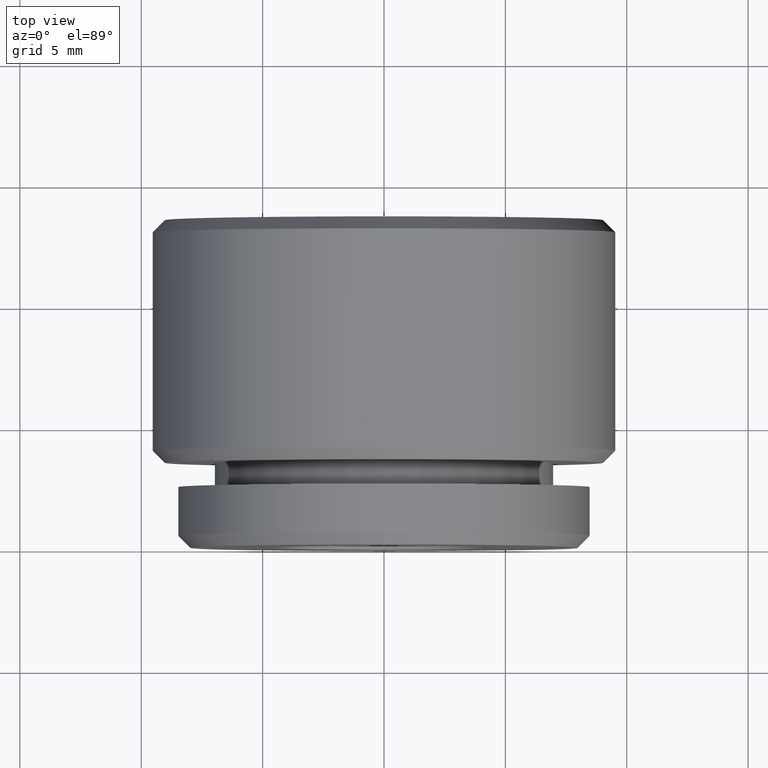
[diagram: clean part render]
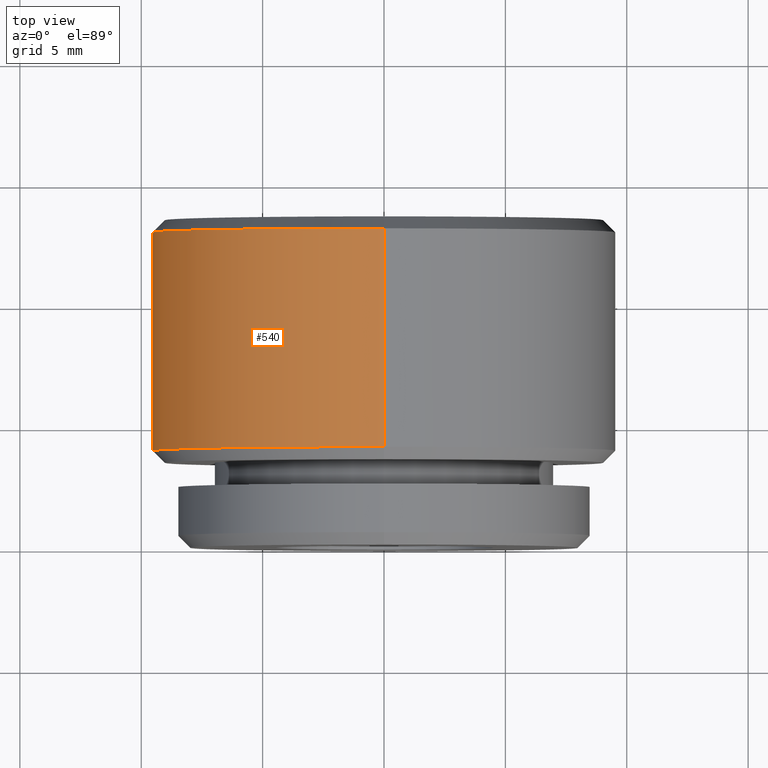
[diagram: same view with one face highlighted and labeled with its STEP entity id]
A machine part, top view. The second image highlights one B-rep face of the part: STEP entity #540.
In plain terms, the highlighted cylindrical surface (partial cylindrical patch) has radius 9.525 mm, axis along (-0, -1, -0).
Its self-contained STEP definition (entity closure, byte-faithful):
#1 = DIRECTION ( 'NONE',  ( 0.0000000000000000000, 0.0000000000000000000, -1.000000000000000000 ) ) ;
#6 = CARTESIAN_POINT ( 'NONE',  ( 0.0000000000000000000, 0.0000000000000000000, 0.0000000000000000000 ) ) ;
#58 = DIRECTION ( 'NONE',  ( 0.0000000000000000000, 1.000000000000000000, 0.0000000000000000000 ) ) ;
#82 = VECTOR ( 'NONE', #841, 1000.000000000000000 ) ;
#121 = EDGE_LOOP ( 'NONE', ( #242, #351, #233, #348 ) ) ;
#135 = VECTOR ( 'NONE', #520, 1000.000000000000000 ) ;
#147 = AXIS2_PLACEMENT_3D ( 'NONE', #667, #730, #278 ) ;
#186 = CARTESIAN_POINT ( 'NONE',  ( 0.0000000000000000000, 0.0000000000000000000, -9.525000000000000400 ) ) ;
#202 = EDGE_CURVE ( 'NONE', #299, #236, #251, .T. ) ;
#233 = ORIENTED_EDGE ( 'NONE', *, *, #370, .T. ) ;
#236 = VERTEX_POINT ( 'NONE', #804 ) ;
#242 = ORIENTED_EDGE ( 'NONE', *, *, #202, .F. ) ;
#251 = LINE ( 'NONE', #400, #135 ) ;
#278 = DIRECTION ( 'NONE',  ( 0.0000000000000000000, 0.0000000000000000000, 1.000000000000000000 ) ) ;
#287 = CIRCLE ( 'NONE', #147, 9.525000000000000400 ) ;
#299 = VERTEX_POINT ( 'NONE', #569 ) ;
#348 = ORIENTED_EDGE ( 'NONE', *, *, #395, .T. ) ;
#351 = ORIENTED_EDGE ( 'NONE', *, *, #658, .T. ) ;
#368 = CIRCLE ( 'NONE', #373, 9.525000000000000400 ) ;
#370 = EDGE_CURVE ( 'NONE', #677, #651, #737, .T. ) ;
#373 = AXIS2_PLACEMENT_3D ( 'NONE', #838, #58, #529 ) ;
#395 = EDGE_CURVE ( 'NONE', #651, #236, #368, .T. ) ;
#399 = CARTESIAN_POINT ( 'NONE',  ( 0.0000000000000000000, 12.99999999999999600, -9.525000000000000400 ) ) ;
#400 = CARTESIAN_POINT ( 'NONE',  ( 1.166476076187854000E-015, 0.0000000000000000000, 9.525000000000000400 ) ) ;
#478 = CARTESIAN_POINT ( 'NONE',  ( 0.0000000000000000000, 4.000000000000001800, -9.525000000000000400 ) ) ;
#520 = DIRECTION ( 'NONE',  ( -0.0000000000000000000, -1.000000000000000000, -0.0000000000000000000 ) ) ;
#529 = DIRECTION ( 'NONE',  ( 0.0000000000000000000, 0.0000000000000000000, -1.000000000000000000 ) ) ;
#540 = ADVANCED_FACE ( 'NONE', ( #757 ), #859, .T. ) ;
#569 = CARTESIAN_POINT ( 'NONE',  ( 1.166476076187854000E-015, 12.99999999999999600, 9.525000000000000400 ) ) ;
#624 = AXIS2_PLACEMENT_3D ( 'NONE', #6, #699, #1 ) ;
#651 = VERTEX_POINT ( 'NONE', #478 ) ;
#658 = EDGE_CURVE ( 'NONE', #299, #677, #287, .T. ) ;
#667 = CARTESIAN_POINT ( 'NONE',  ( 0.0000000000000000000, 12.99999999999999600, 0.0000000000000000000 ) ) ;
#677 = VERTEX_POINT ( 'NONE', #399 ) ;
#699 = DIRECTION ( 'NONE',  ( -0.0000000000000000000, -1.000000000000000000, -0.0000000000000000000 ) ) ;
#730 = DIRECTION ( 'NONE',  ( -0.0000000000000000000, -1.000000000000000000, -0.0000000000000000000 ) ) ;
#737 = LINE ( 'NONE', #186, #82 ) ;
#757 = FACE_OUTER_BOUND ( 'NONE', #121, .T. ) ;
#804 = CARTESIAN_POINT ( 'NONE',  ( 1.166476076187854000E-015, 4.000000000000001800, 9.525000000000000400 ) ) ;
#838 = CARTESIAN_POINT ( 'NONE',  ( 0.0000000000000000000, 4.000000000000001800, 0.0000000000000000000 ) ) ;
#841 = DIRECTION ( 'NONE',  ( -0.0000000000000000000, -1.000000000000000000, -0.0000000000000000000 ) ) ;
#859 = CYLINDRICAL_SURFACE ( 'NONE', #624, 9.525000000000000400 ) ;